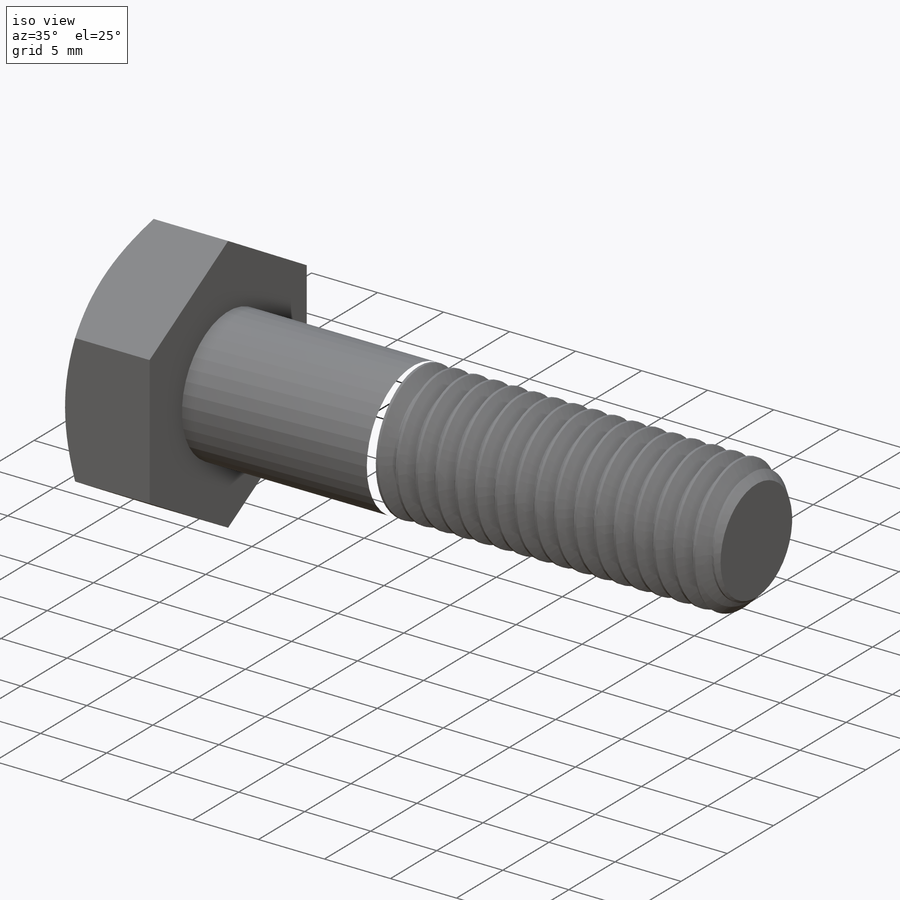
[diagram: iso view]
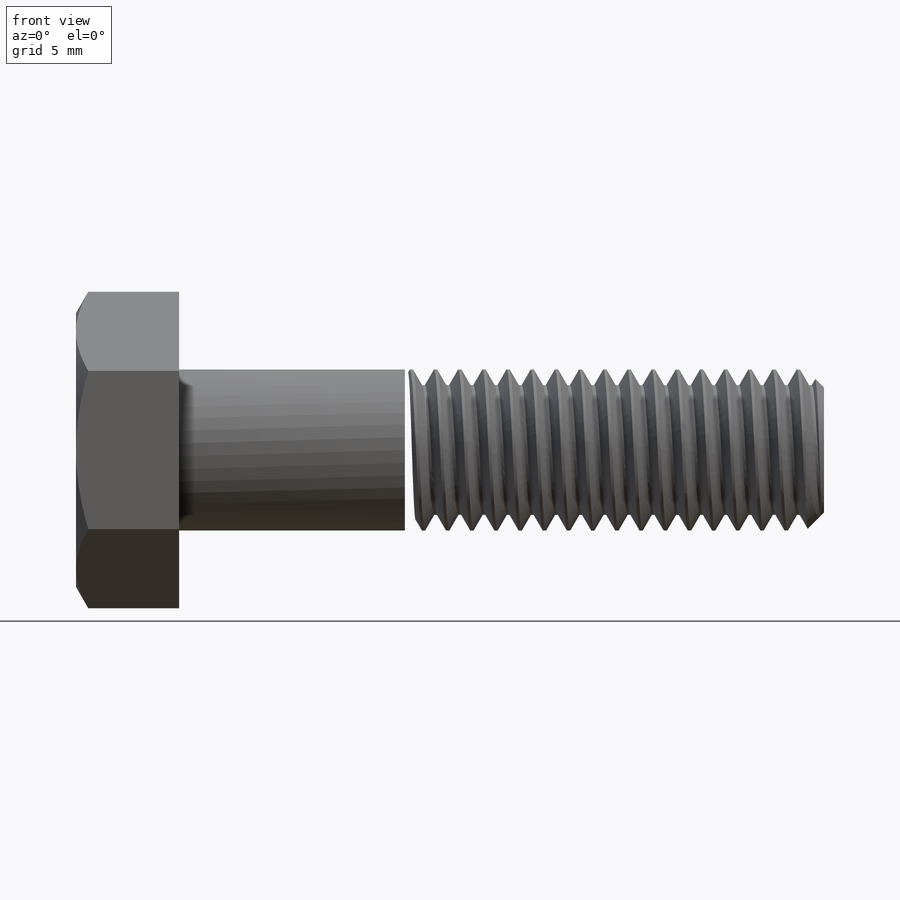
[diagram: front view]
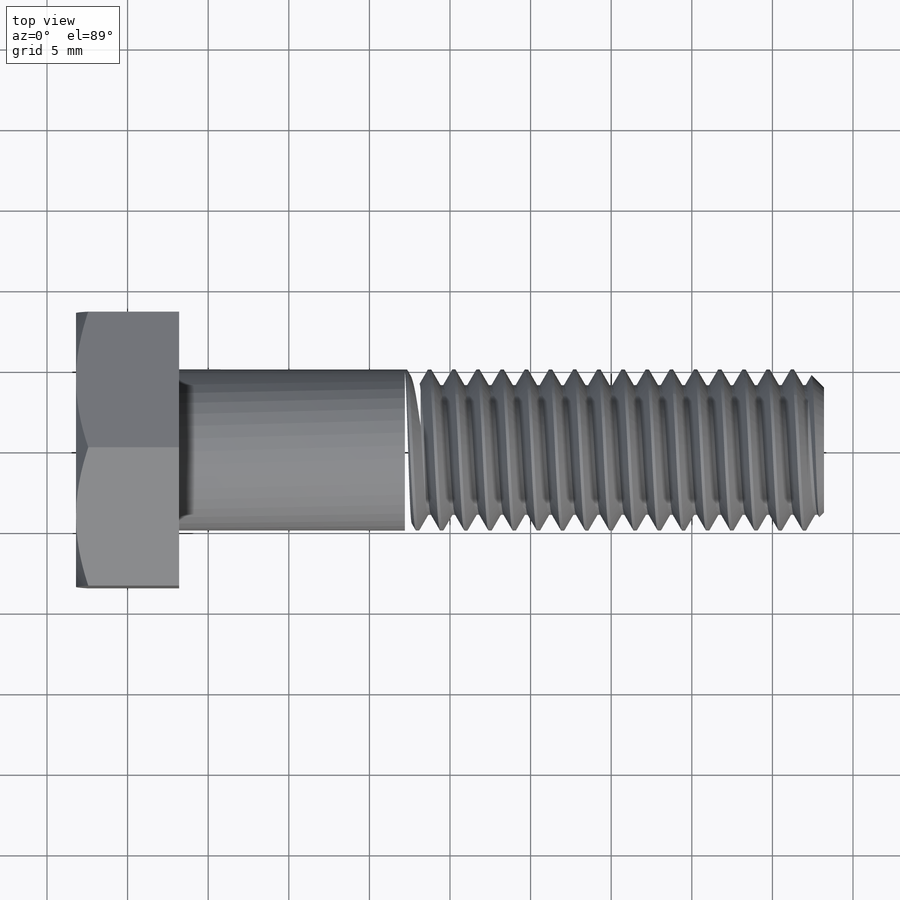
[diagram: top view]
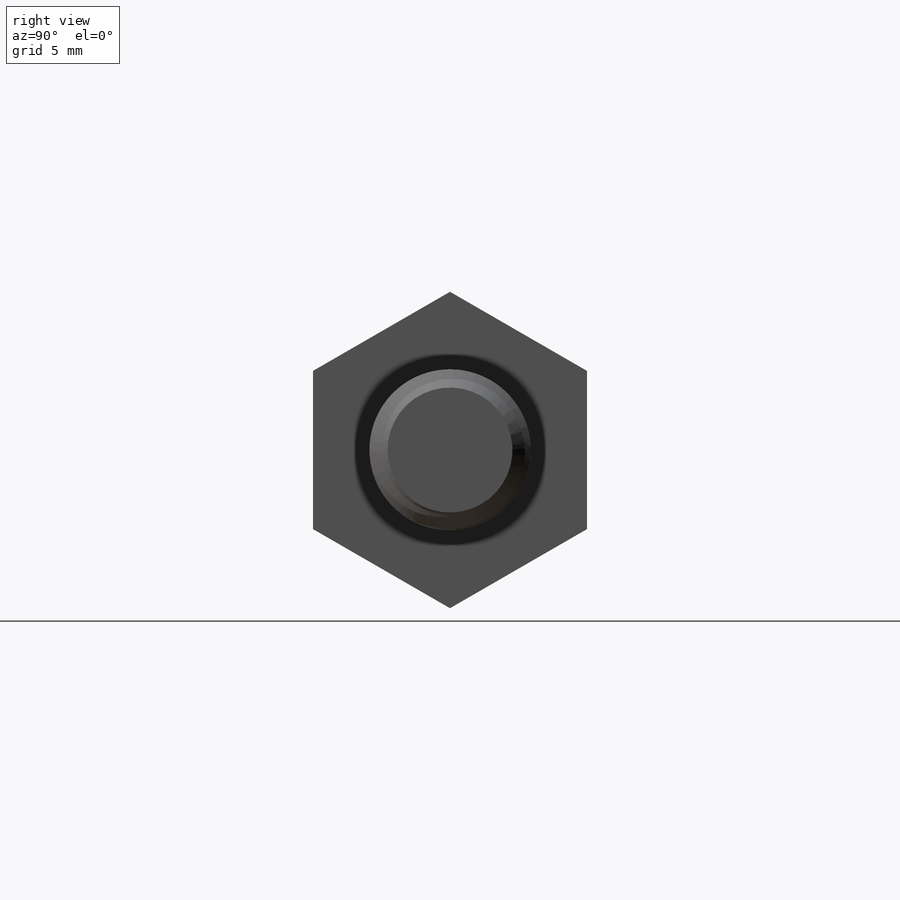
[diagram: right view]
SOLIDWORKS PART (.sldprt)
format: sldprt  version: not decoded by parser v0  size: 1,004,032 bytes
history: native  units: mm
features: sketch x8, extrude x2, cut_extrude x2, material x1, plane x1, helix x1, chamfer x1, sweep x1, revolve x1 (+15 scaffold rows collapsed)
feature tree (33):
  scaffold x15  (default folders/planes/origin — collapsed)
  material  "Material <not specified>"
  sketch  "Sketch1"  dims[Thread Dia=10.0mm Hex=17.0mm Head Ht=6.4mm Length=40.0mm D1=5.25mm]
  plane  "Plane2"
  sketch  "Sketch2"
  extrude  "Boss-Extrude1"  [1 undecoded]
  sketch  "Sketch4"  dims[D1=0.0mm]
  helix  "Helix/Spiral1"  Pitch=41.5mm
  chamfer  "Chamfer1"  Distance=1.125mm Angle=45deg
  sketch  "Sketch5"  dims[c1.D1=~4.855043mm c2.D1=60.0deg c2.D2=0.1875mm c2.D3=0.75mm]
  sweep  "Cut-Sweep1"
  sketch  "Sketch3"  dims[D1=~167.119757mm D2=~167.119757mm]
  extrude  "Boss-Extrude2"  [1 undecoded]
  sketch  "Sketch6"
  cut_extrude  "Cut-Extrude1"  [1 undecoded]
  sketch  "Sketch7"
  cut_extrude  "Cut-Extrude2"  Depth=0.25mm
  sketch  "Sketch9"  dims[c1.D1=~3.034446mm c2.D1=45.0deg c2.MinThreadLg=26.0mm]
  revolve  "Revolve1"  Angle=360deg
decode coverage: 9 of 16 modeling features carry decoded parameters
note: ~ marks probable driven/reference dimensions
note: 3 parameter values undecoded
summary: no parameter record found for 3 features
note: suppression state not decoded; provenance and decode notes live in map.json
